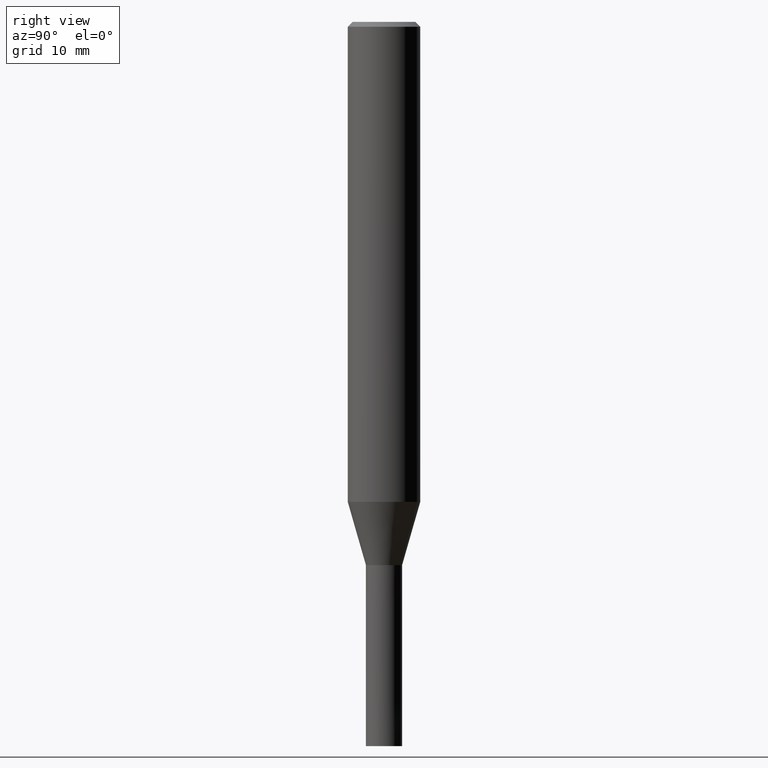
[diagram: clean part render]
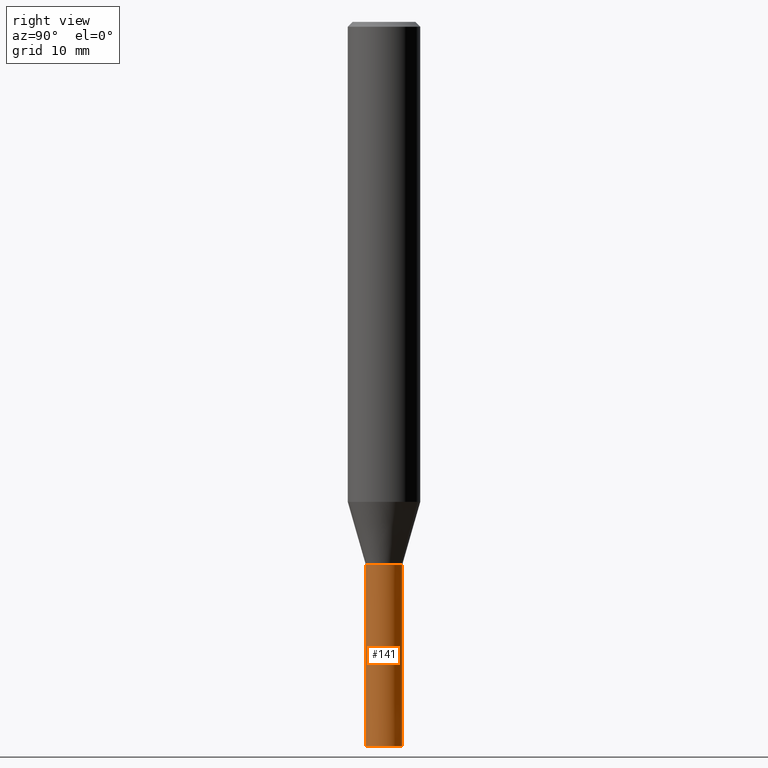
[diagram: same view with one face highlighted and labeled with its STEP entity id]
A machine part, right view. The second image highlights one B-rep face of the part: STEP entity #141.
In plain terms, the highlighted conical surface has half-angle 0 deg.
Its self-contained STEP definition (entity closure, byte-faithful):
#127=VERTEX_POINT('',#298);
#129=EDGE_CURVE('',#225,#127,#300,.T.);
#141=ADVANCED_FACE('',(#314),#315,.T.);
#145=EDGE_CURVE('',#225,#185,#320,.T.);
#163=EDGE_CURVE('',#127,#187,#340,.T.);
#169=EDGE_CURVE('',#187,#185,#347,.T.);
#185=VERTEX_POINT('',#363);
#187=VERTEX_POINT('',#365);
#225=VERTEX_POINT('',#409);
#298=CARTESIAN_POINT('',(0.0,1.5,-60.0));
#300=LINE('',#492,#493);
#314=FACE_OUTER_BOUND('',#509,.T.);
#315=CONICAL_SURFACE('',#510,1.49995,6.66666666656717E-006);
#320=CIRCLE('',#516,1.4999);
#340=CIRCLE('',#540,1.5);
#347=LINE('',#550,#551);
#363=CARTESIAN_POINT('',(1.83678707009818E-016,-1.4999,-45.0));
#365=CARTESIAN_POINT('',(1.83690953073357E-016,-1.5,-60.0));
#409=CARTESIAN_POINT('',(0.0,1.4999,-45.0));
#492=CARTESIAN_POINT('',(-1.83684830041587E-016,1.49995,-52.5));
#493=VECTOR('',#696,1.0);
#509=EDGE_LOOP('',(#715,#716,#717,#718));
#510=AXIS2_PLACEMENT_3D('',#719,#720,#721);
#516=AXIS2_PLACEMENT_3D('',#730,#731,#732);
#540=AXIS2_PLACEMENT_3D('',#753,#754,#755);
#550=CARTESIAN_POINT('',(1.83684830041587E-016,-1.49995,-52.5));
#551=VECTOR('',#765,1.0);
#696=DIRECTION('',(-8.16404235863353E-022,6.66666666651778E-006,-0.999999999977778));
#715=ORIENTED_EDGE('',*,*,#129,.F.);
#716=ORIENTED_EDGE('',*,*,#145,.T.);
#717=ORIENTED_EDGE('',*,*,#169,.F.);
#718=ORIENTED_EDGE('',*,*,#163,.F.);
#719=CARTESIAN_POINT('',(0.0,0.0,-52.5));
#720=DIRECTION('',(0.0,-0.0,-1.0));
#721=DIRECTION('',(0.0,1.0,0.0));
#730=CARTESIAN_POINT('',(0.0,0.0,-45.0));
#731=DIRECTION('',(0.0,0.0,-1.0));
#732=DIRECTION('',(0.0,1.0,0.0));
#753=CARTESIAN_POINT('',(0.0,0.0,-60.0));
#754=DIRECTION('',(0.0,0.0,-1.0));
#755=DIRECTION('',(0.0,1.0,0.0));
#765=DIRECTION('',(-8.16404235863353E-022,6.66666666651778E-006,0.999999999977778));